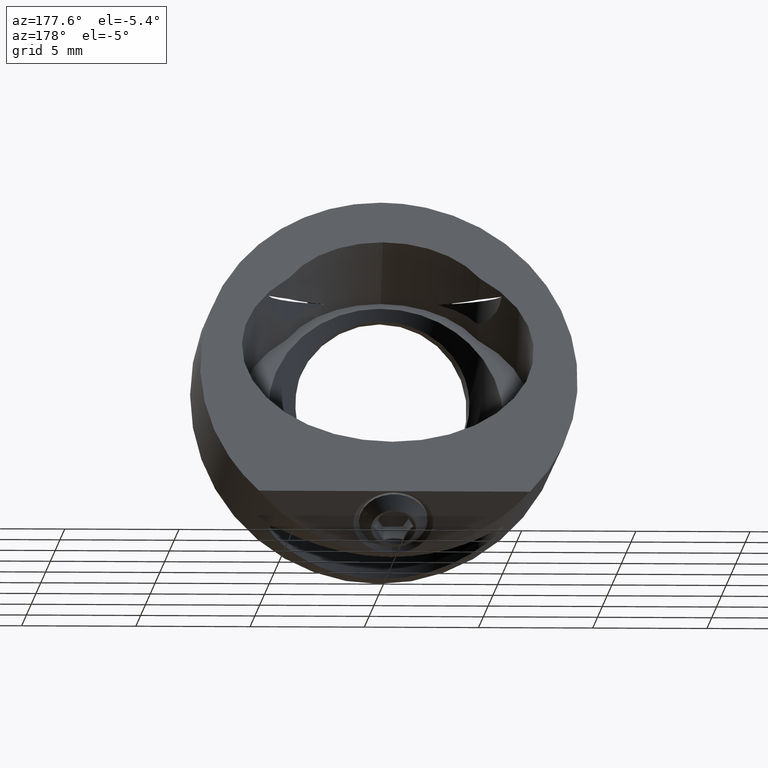
[diagram: clean part render]
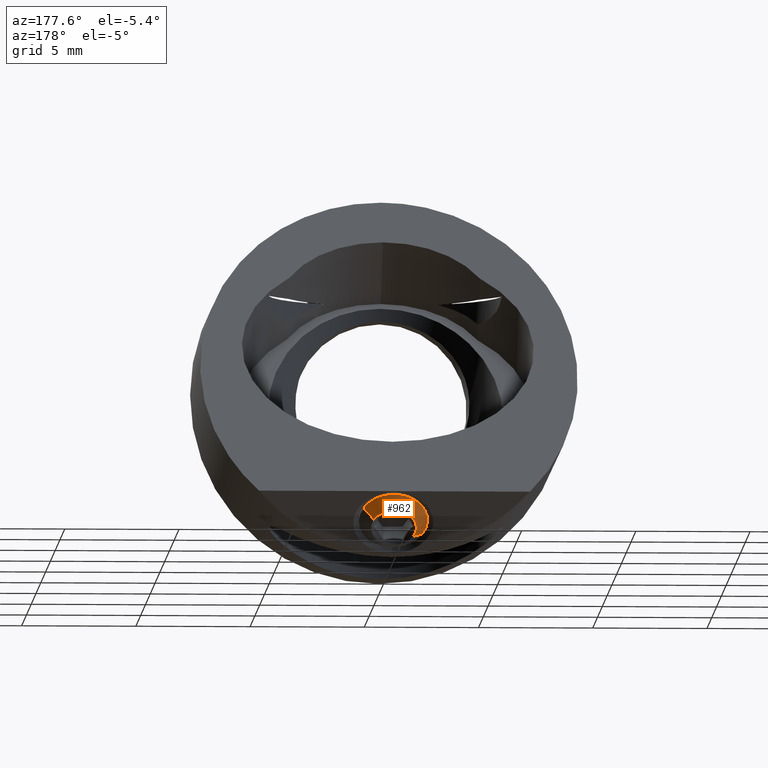
[diagram: same view with one face highlighted and labeled with its STEP entity id]
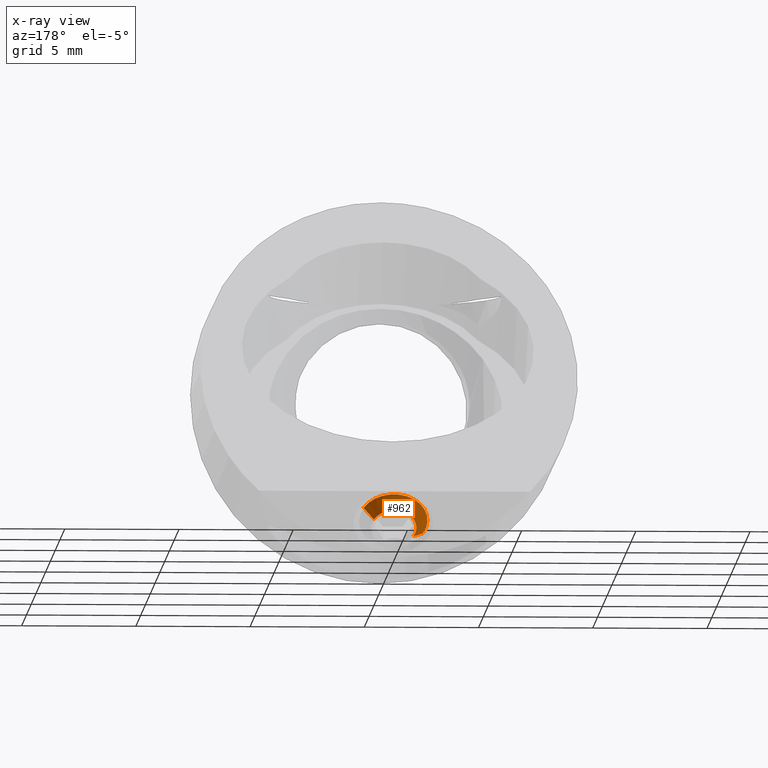
[diagram: x-ray of the same camera — body ghosted, the highlighted face saturated]
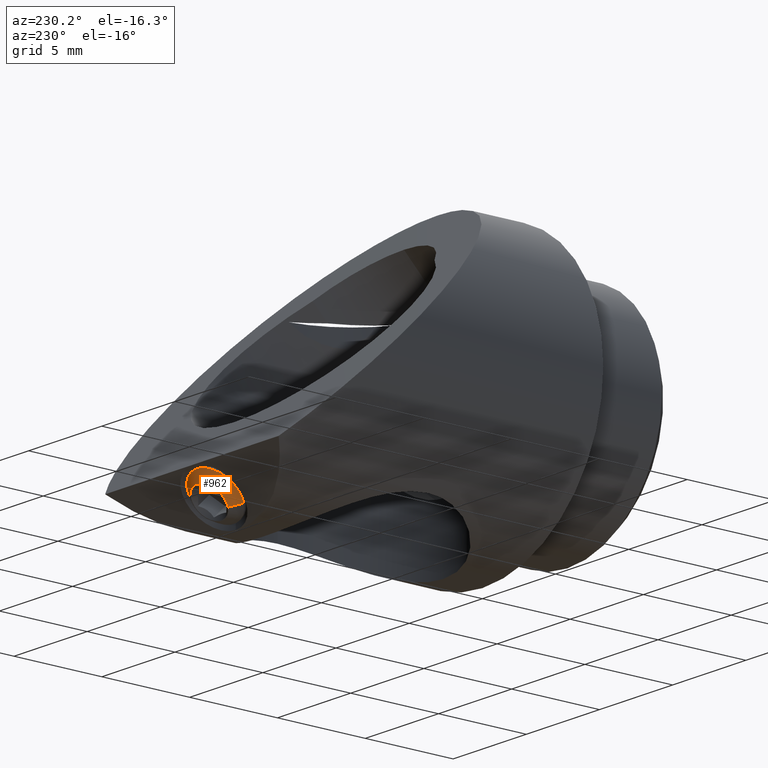
[diagram: same view with one face highlighted and labeled with its STEP entity id]
A machine part, auxiliary view. The second image highlights one B-rep face of the part: STEP entity #962.
The next image is the same camera in x-ray: the body ghosted, the highlighted face saturated — about 0% of this face is hidden behind the body in this view.
A second angle (auxiliary view) of the same face is appended — the face is thin or edge-on in the first view.
In plain terms, the highlighted conical surface has half-angle 45 deg.
Its self-contained STEP definition (entity closure, byte-faithful):
#18 = VECTOR ( 'NONE', #169, 1000.000000000000000 ) ;
#26 = EDGE_LOOP ( 'NONE', ( #734, #1044, #1334, #1649 ) ) ;
#69 = DIRECTION ( 'NONE',  ( 0.8775463060362351797, 0.3390519729791863779, 0.3390519729791872106 ) ) ;
#73 = CARTESIAN_POINT ( 'NONE',  ( -6.558338941364816321E-16, 15.54728207625147718, -7.266753790150988657 ) ) ;
#125 = CARTESIAN_POINT ( 'NONE',  ( 1.316319459054352770, 15.70230664512697949, -6.404622440088934887 ) ) ;
#169 = DIRECTION ( 'NONE',  ( -0.6205189438034260929, -0.7397459492682622040, 0.2602540507317383511 ) ) ;
#203 = VERTEX_POINT ( 'NONE', #1088 ) ;
#281 = EDGE_CURVE ( 'NONE', #203, #1385, #850, .T. ) ;
#319 = CARTESIAN_POINT ( 'NONE',  ( -6.558338941364816321E-16, 15.54728207625147718, -7.266753790150988657 ) ) ;
#331 = AXIS2_PLACEMENT_3D ( 'NONE', #319, #1128, #69 ) ;
#335 = VECTOR ( 'NONE', #1059, 1000.000000000000114 ) ;
#480 = VERTEX_POINT ( 'NONE', #767 ) ;
#551 = AXIS2_PLACEMENT_3D ( 'NONE', #73, #1478, #1366 ) ;
#643 = DIRECTION ( 'NONE',  ( 1.960237527853792017E-16, -0.7071067811865499042, 0.7071067811865453523 ) ) ;
#668 = CARTESIAN_POINT ( 'NONE',  ( -5.578220177437918341E-16, 15.19372868565820056, -6.913200399557715592 ) ) ;
#680 = CARTESIAN_POINT ( 'NONE',  ( 0.8775463060362356238, 15.88633404923066372, -6.927701817171801224 ) ) ;
#691 = LINE ( 'NONE', #680, #335 ) ;
#696 = FACE_OUTER_BOUND ( 'NONE', #26, .T. ) ;
#734 = ORIENTED_EDGE ( 'NONE', *, *, #1503, .F. ) ;
#767 = CARTESIAN_POINT ( 'NONE',  ( -1.316319459054354102, 14.68515072618942163, -7.421778359026496297 ) ) ;
#800 = CIRCLE ( 'NONE', #1023, 1.500000000000000222 ) ;
#850 = CIRCLE ( 'NONE', #331, 1.000000000000001110 ) ;
#867 = LINE ( 'NONE', #1009, #18 ) ;
#962 = ADVANCED_FACE ( 'NONE', ( #696 ), #1458, .T. ) ;
#1009 = CARTESIAN_POINT ( 'NONE',  ( -0.8775463060362368450, 15.20823010327229063, -7.605805763130176089 ) ) ;
#1015 = CARTESIAN_POINT ( 'NONE',  ( 0.8775463060362362899, 15.88633404923066372, -6.927701817171800336 ) ) ;
#1023 = AXIS2_PLACEMENT_3D ( 'NONE', #668, #643, #1203 ) ;
#1044 = ORIENTED_EDGE ( 'NONE', *, *, #281, .F. ) ;
#1059 = DIRECTION ( 'NONE',  ( 0.6205189438034262039, -0.2602540507317429030, 0.7397459492682604276 ) ) ;
#1088 = CARTESIAN_POINT ( 'NONE',  ( -0.8775463060362372891, 15.20823010327229063, -7.605805763130176089 ) ) ;
#1128 = DIRECTION ( 'NONE',  ( -1.960237527853792017E-16, 0.7071067811865499042, -0.7071067811865453523 ) ) ;
#1155 = VERTEX_POINT ( 'NONE', #125 ) ;
#1160 = EDGE_CURVE ( 'NONE', #1155, #480, #800, .T. ) ;
#1203 = DIRECTION ( 'NONE',  ( 0.8775463060362355128, 0.3390519729791855452, 0.3390519729791872106 ) ) ;
#1332 = EDGE_CURVE ( 'NONE', #203, #480, #867, .T. ) ;
#1334 = ORIENTED_EDGE ( 'NONE', *, *, #1332, .T. ) ;
#1366 = DIRECTION ( 'NONE',  ( -0.8775463060362357348, -0.3390519729791848236, -0.3390519729791874326 ) ) ;
#1385 = VERTEX_POINT ( 'NONE', #1015 ) ;
#1458 = CONICAL_SURFACE ( 'NONE', #551, 1.000000000000000444, 0.7853981633974463916 ) ;
#1478 = DIRECTION ( 'NONE',  ( 1.960237527853792017E-16, -0.7071067811865499042, 0.7071067811865453523 ) ) ;
#1503 = EDGE_CURVE ( 'NONE', #1385, #1155, #691, .T. ) ;
#1649 = ORIENTED_EDGE ( 'NONE', *, *, #1160, .F. ) ;